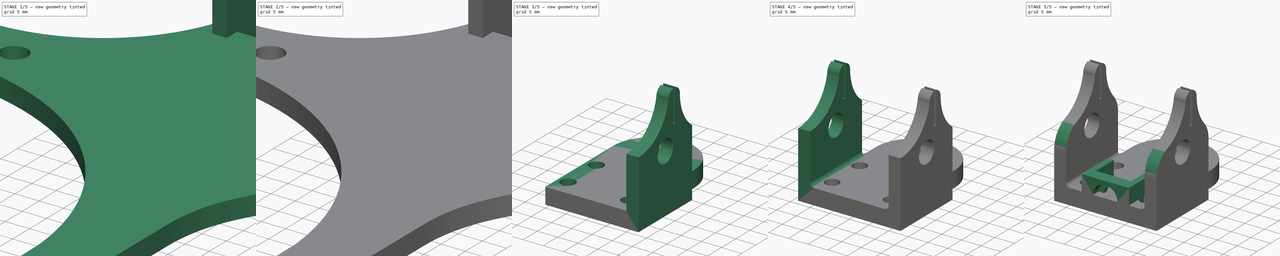
[diagram: build sequence overview — one tinted view per stage of 5, left to right]
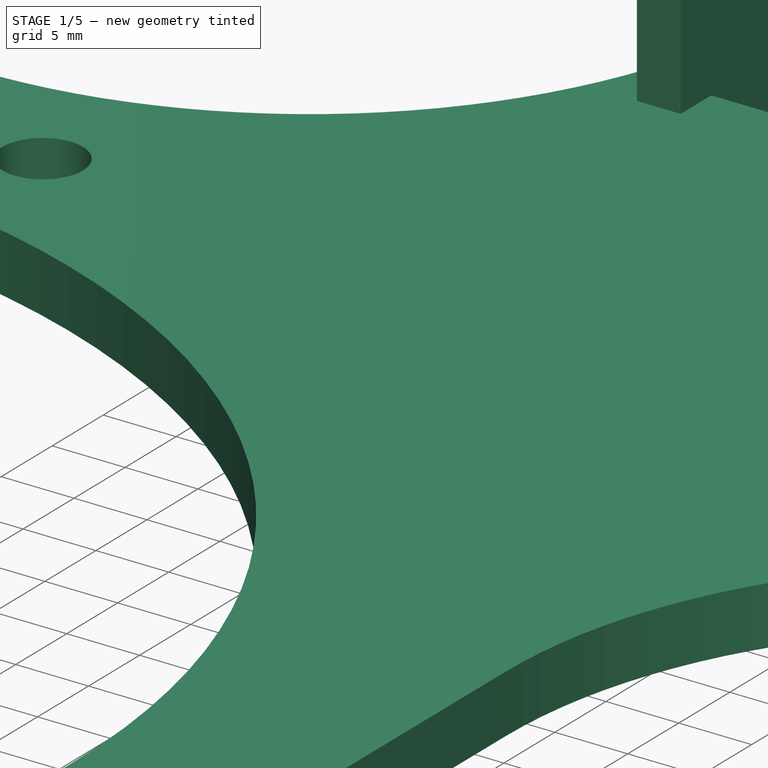
[diagram: stage 1 of 5 — iso view after this stage's code; geometry added in this stage tinted green]
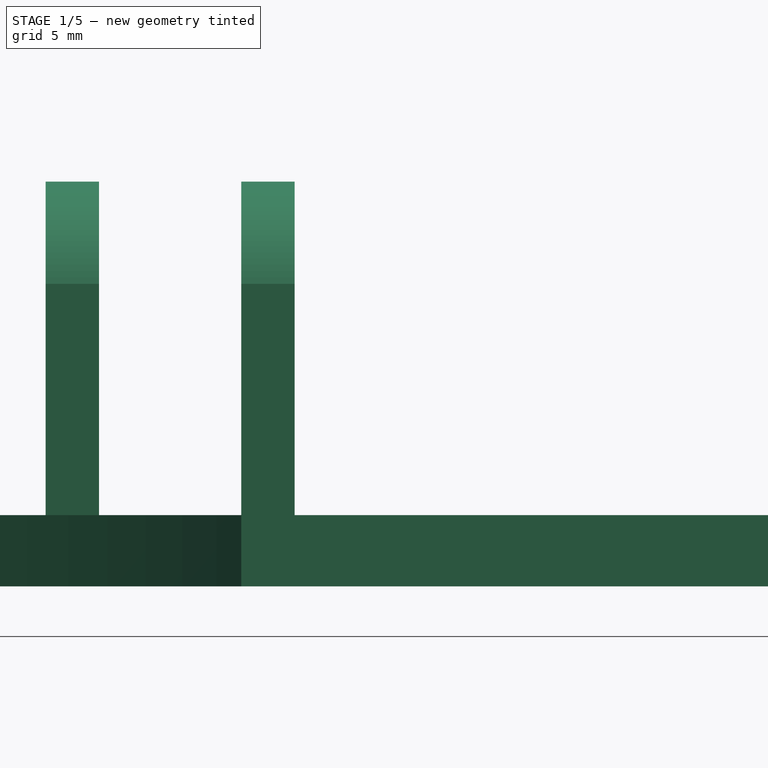
[diagram: stage 1 of 5 — front view after this stage's code; geometry added in this stage tinted green]
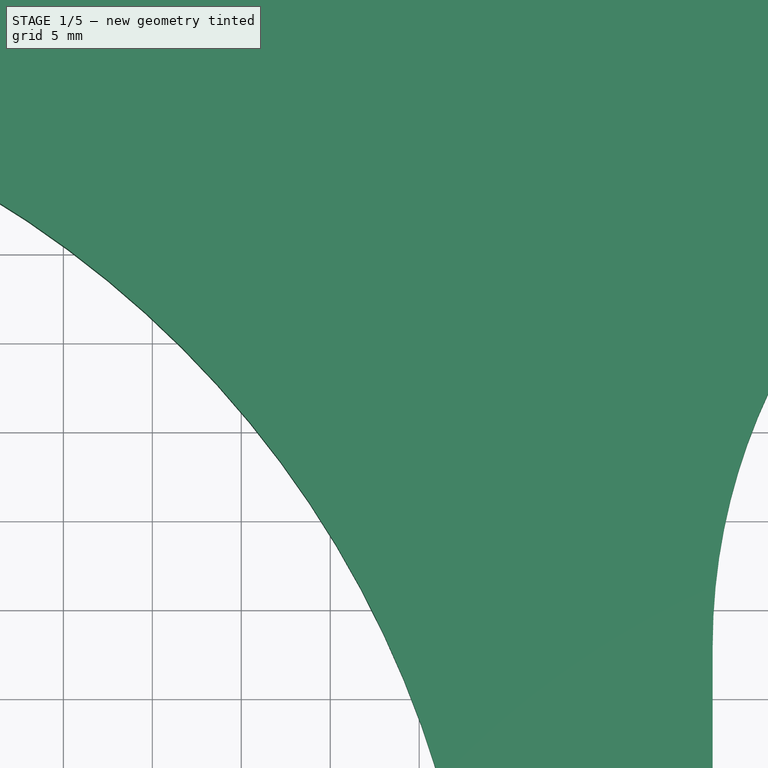
[diagram: stage 1 of 5 — top view after this stage's code; geometry added in this stage tinted green]
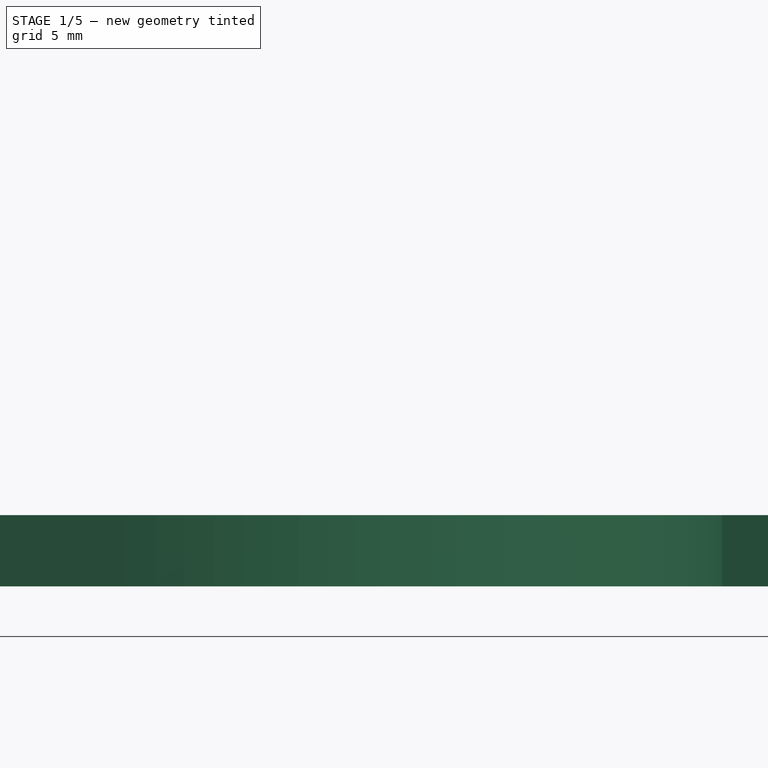
[diagram: stage 1 of 5 — right view after this stage's code; geometry added in this stage tinted green]
FCSTD DOCUMENT  (FreeCAD 1.0RUnknown)
Label: line-measure-tool
License: All rights reserved
LicenseURL: https://en.wikipedia.org/wiki/All_rights_reserved
objects: Sketcher::SketchObject×9, PartDesign::Pad×9, App::VarSet×4, PartDesign::Fillet×4, PartDesign::Hole×3, PartDesign::Body×3, Part::Part2DObjectPython×2, PartDesign::SubShapeBinder×1
note: 72 computed .brp shape members not serialized (recipe doc carries the construction recipe); baked Part::Feature solids carry a one-line shape summary decoded from their .brp

FEATURE [Sketcher::SketchObject] Sketch
  ArcFitTolerance = 1e-06
  AttachmentSupport = -> [XY_Plane]
  FullyConstrained = false
  MakeInternals = false
  MapMode = 5
  expr: Constraints[28] = <<rail>>.Width + 3 mm
  expr: Constraints[30] = <<rail>>.Width + <<rail>>.ClampThickness * 2 + 1 mm
  expr: Constraints[40] = <<wheel>>.thk + 1 mm
  expr: Constraints[41] = <<wheel>>.GrooveHeight + 2 mm
  expr: Constraints[58] = <<block>>.Width / 2 + 10 mm
  sketch-geometry (26):
    g0: LineSegment StartX=20 StartY=0 StartZ=0 EndX=20 EndY=15 EndZ=0
    g1: ArcOfCircle CenterX=20 CenterY=28.5 CenterZ=0 NormalX=0 NormalY=0 NormalZ=1 AngleXU=0 Radius=13.5 StartAngle=3.14159 EndAngle=4.71239
    g2: LineSegment StartX=6.5 StartY=28.5 StartZ=0 EndX=6.5 EndY=63 EndZ=0
    g3: ArcOfCircle CenterX=40 CenterY=63 CenterZ=0 NormalX=0 NormalY=0 NormalZ=1 AngleXU=0 Radius=33.5 StartAngle=1.5708 EndAngle=3.14159
    g4: ArcOfCircle CenterX=40 CenterY=145 CenterZ=0 NormalX=0 NormalY=0 NormalZ=1 AngleXU=0 Radius=33.5 StartAngle=3.14159 EndAngle=4.71239
    g5: LineSegment StartX=6.5 StartY=145 StartZ=0 EndX=6.5 EndY=155 EndZ=0
    g6: LineSegment StartX=6.5 StartY=155 StartZ=0 EndX=-6.5 EndY=155 EndZ=0
    g7: LineSegment StartX=-20 StartY=144.454 StartZ=0 EndX=-20 EndY=132.454 EndZ=0
    g8: LineSegment StartX=-20 StartY=132.454 StartZ=0 EndX=-28 EndY=132.454 EndZ=0
    g9: LineSegment StartX=-28 StartY=132.454 StartZ=0 EndX=-28 EndY=144.454 EndZ=0
    g10: LineSegment StartX=-28 StartY=144.454 StartZ=0 EndX=-31 EndY=144.454 EndZ=0
    g11: LineSegment StartX=-63.9537 StartY=111.5 StartZ=0 EndX=-63.9537 EndY=96.5 EndZ=0
    g12: ArcOfCircle CenterX=-63.9537 CenterY=39.0463 CenterZ=0 NormalX=0 NormalY=0 NormalZ=1 AngleXU=0 Radius=57.4537 StartAngle=0 EndAngle=1.5708
    g13: ArcOfCircle CenterX=-20 CenterY=28.5 CenterZ=0 NormalX=0 NormalY=0 NormalZ=1 AngleXU=0 Radius=13.5 StartAngle=4.71239 EndAngle=6.28319
    g14: LineSegment StartX=-20 StartY=15 StartZ=0 EndX=-20 EndY=0 EndZ=0
    g15: LineSegment StartX=40 StartY=111.5 StartZ=0 EndX=40 EndY=96.5 EndZ=0
    g16: LineSegment StartX=-20 StartY=0 StartZ=0 EndX=20 EndY=0 EndZ=0
    g17: LineSegment StartX=-6.5 StartY=28.5 StartZ=0 EndX=-6.5 EndY=39.0463 EndZ=0
    g18: LineSegment [constr] StartX=-6.5 StartY=28.5 StartZ=0 EndX=6.5 EndY=28.5 EndZ=0
    g19: LineSegment StartX=-6.5 StartY=155 StartZ=0 EndX=-6.5 EndY=145 EndZ=0
    g20: LineSegment StartX=-20 StartY=144.454 StartZ=0 EndX=-6.5 EndY=145 EndZ=0
    g21: ArcOfCircle CenterX=-63.9537 CenterY=144.454 CenterZ=0 NormalX=0 NormalY=0 NormalZ=1 AngleXU=0 Radius=32.9537 StartAngle=4.71239 EndAngle=6.28319
    g22: Circle CenterX=-53.9537 CenterY=104 CenterZ=0 NormalX=0 NormalY=0 NormalZ=1 AngleXU=0 Radius=2.75
    g23: Circle CenterX=30 CenterY=104 CenterZ=0 NormalX=0 NormalY=0 NormalZ=1 AngleXU=0 Radius=2.75
    g24: Circle CenterX=14 CenterY=7.5 CenterZ=0 NormalX=0 NormalY=0 NormalZ=1 AngleXU=0 Radius=2.75
    g25: GeomPoint X=20 Y=7.5 Z=0
  constraints (72):
    c: PointOnObject(g0,g-1)
    c: Vertical(g0)
    c: Perpendicular(g0,g1) = 4.71239
    c: Vertical(g2)
    c: Vertical(g5)
    c: Coincident(g5,g6)
    c: Coincident(g7,g8)
    c: Horizontal(g8)
    c: Coincident(g8,g9)
    c: Coincident(g9,g10)
    c: Horizontal(g10)
    c: Coincident(g13,g14)
    c: Vertical(g14)
    c: Coincident(g15,g3)
    c: Symmetric(g13,g1,g-2)
    c: Coincident(g16,g14)
    c: Coincident(g16,g0)
    c: Vertical(g15)
    c: Vertical(g11)
    c: Vertical(g17)
    c: Vertical(g7)
    c: Coincident(g12,g11)
    c: Coincident(g4,g15)
    c: Tangent(g1,g2) = 1.5708
    c: Distance(g16,g16) = 40
    c: Symmetric(g14,g0,g-2)
    c: Equal(g14,g0)
    c: DistanceY(g14,g14) = 15
    c: Coincident(g17,g13) = 12
    c: Equal(g1,g13)
    c: Distance(g2,g17) = 13
    c: DistanceY(g15,g15) = 15
    c: Coincident(g18,g13)
    c: Coincident(g18,g1)
    c: Equal(g18,g6)
    c: Symmetric(g6,g5,g-2)
    c: Horizontal(g9,g7)
    c: Coincident(g19,g6)
    c: Vertical(g19)
    c: Coincident(g20,g7)
    c: Coincident(g20,g19) = 8
    c: Vertical(g9) = 4.1
    c: DistanceX(g8,g8) = 8
    c: DistanceY(g7,g7) = 12
    c: DistanceY(g14,g6) = 155
    c: Tangent(g2,g3) = 1.5708
    c: Tangent(g4,g5) = 1.5708
    c: Tangent(g17,g12) = -1.5708
    c: Perpendicular(g4,g15)
    c: Perpendicular(g3,g15)
    c: Distance(g-2,g15) = 40
    c: DistanceY(g5,g5) = 10
    c: Equal(g5,g19)
    c: Equal(g15,g11)
    c: DistanceX(g10,g10) = 3
    c: Coincident(g21,g10)
    c: Coincident(g21,g11)
    c: Perpendicular(g21,g11)
    c: Distance(g7,g-2) = 20
    c: Horizontal(g11,g4)
    c: Perpendicular(g12,g11)
    c: Equal(g22,g23)
    c: Equal(g23,g24)
    c: Diameter(g22) = 5.5
    c: Horizontal(g23,g22)
    c: Distance(g22,g11) = 10
    c: Distance(g23,g15) = 10
    c: DistanceY(g23,g4) = 7.5
    c: Perpendicular(g21,g10)
    c: Symmetric(g0,g0,g25)
    c: Horizontal(g25,g24)
    c: Distance(g24,g0) = 6
FEATURE [App::VarSet] VarSet001  label="wheel"
  D = 24
  GrooveHeight = 2.1
  d = 5
  thk = 7
FEATURE [App::VarSet] VarSet  label="block"
  HoleD = 3
  HoleLengthDist = 10
  HoleWidthDist = 15
  L = 28.9
  L1 = 18.9
  Width = 20
FEATURE [App::VarSet] VarSet002  label="rail"
  ClampThickness = 1.5
  Heigth = 6.5
  HoleDiameter = 3.5
  HoleDistance = 20
  HoleEdgeDistance = 10
  L = 100
  Width = 9
FEATURE [PartDesign::Pad] Pad  label="base"
  Direction = (0,0,1)
  Length = 4
  Length2 = 10
  Profile = -> Sketch
  ReferenceAxis = -> Sketch [N_Axis]
  Refine = true
  Suppressed = false
  Type = 0
FEATURE [Sketcher::SketchObject] Sketch001  label="WheelHolderSketch"
  ArcFitTolerance = 1e-06
  AttachmentSupport = -> [YZ_Plane,Pad]
  ExternalGeometry = -> [Pad]
  FullyConstrained = true
  MakeInternals = false
  MapMode = 53
  Placement = pos=(-28,3.1e-15,-3.1e-15) rot=(0.57735,0.57735,0.57735;2.0944rad)
  expr: Constraints[11] = <<wheel>>.d + 0.5 mm
  sketch-geometry (7):
    g0: LineSegment StartX=144.454 StartY=4 StartZ=0 EndX=144.454 EndY=17 EndZ=0
    g1: ArcOfCircle CenterX=136.954 CenterY=14.9837 CenterZ=0 NormalX=0 NormalY=0 NormalZ=1 AngleXU=0 Radius=7.7663 StartAngle=0.262631 EndAngle=2.87896
    g2: LineSegment StartX=129.454 StartY=17 StartZ=0 EndX=129.454 EndY=4 EndZ=0
    g3: LineSegment StartX=129.454 StartY=4 StartZ=0 EndX=144.454 EndY=4 EndZ=0
    g4: Circle CenterX=136.954 CenterY=17 CenterZ=0 NormalX=0 NormalY=0 NormalZ=1 AngleXU=0 Radius=2.75
    g5: GeomPoint X=136.954 Y=22.75 Z=0
    g6: GeomPoint X=136.954 Y=19.75 Z=0
  constraints (19):
    c: Coincident(g-3,g0)
    c: Vertical(g0)
    c: Coincident(g2,g3)
    c: Coincident(g3,g0)
    c: Horizontal(g3)
    c: Vertical(g2)
    c: DistanceX(g3,g3) = 15
    c: DistanceY(g0,g0) = 13
    c: Coincident(g1,g2)
    c: Coincident(g1,g0)
    c: Horizontal(g1,g0)
    c: Diameter(g4) = 5.5
    c: Vertical(g4,g1)
    c: PointOnObject(g5,g1)
    c: PointOnObject(g6,g4)
    c: Vertical(g6,g5)
    c: Vertical(g5,g4)
    c: Distance(g5,g6) = 3
    c: Distance(g4,g3) = 13
FEATURE [Part::Part2DObjectPython] Clone2D  label="WheelHolderSketch (2D)"  # Draft 2D object (typed FeaturePython)
  AttachmentSupport = -> [YZ_Plane,Pad]
  Fuse = false
  MapMode = 53
  Objects = -> [Sketch001]
  Placement = pos=(-20,2.2e-15,-2.2e-15) rot=(0.57735,0.57735,0.57735;2.0944rad)
  Scale = (1,1,1)
FEATURE [PartDesign::Pad] Pad001  label="WheelHolder"
  BaseFeature = -> Pad
  Direction = (1,0,0)
  Length = 3
  Length2 = 10
  Profile = -> Sketch001
  ReferenceAxis = -> Sketch001 [N_Axis]
  Refine = true
  Reversed = true
  Suppressed = false
  Type = 0
FEATURE [PartDesign::Pad] Pad002
  BaseFeature = -> Pad001
  Direction = (1,0,0)
  Length = 3
  Length2 = 10
  Profile = -> Clone2D
  ReferenceAxis = -> Clone2D [N_Axis]
  Refine = true
  Suppressed = false
  Type = 0
  expr: Length = <<WheelHolder>>.Length
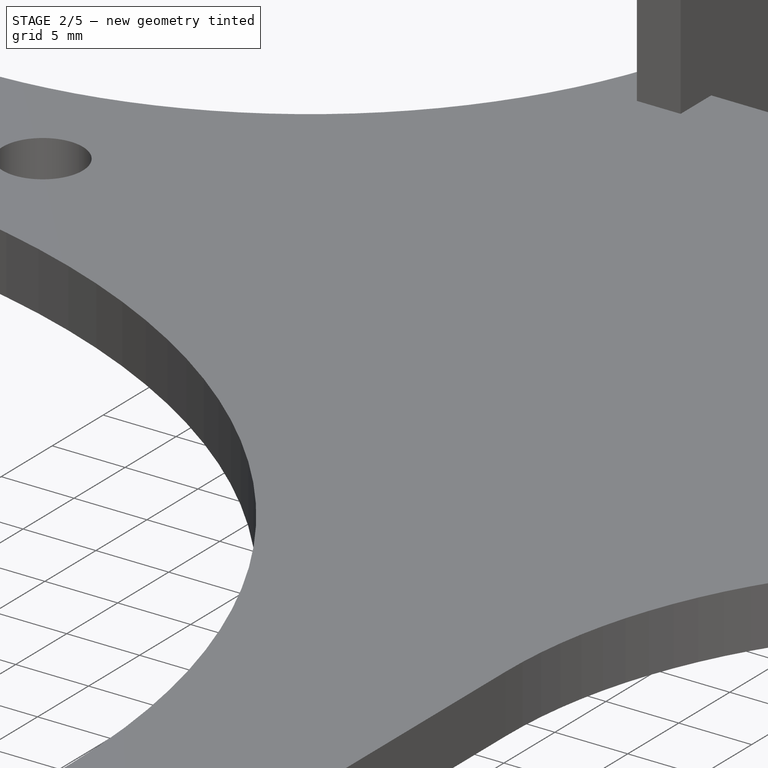
[diagram: stage 2 of 5 — iso view after this stage's code; geometry added in this stage tinted green]
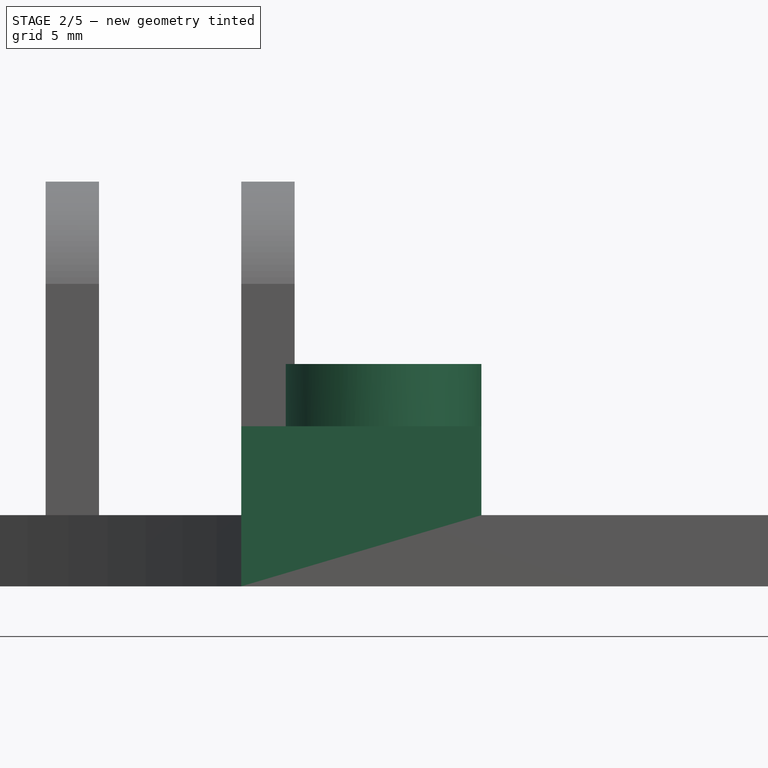
[diagram: stage 2 of 5 — front view after this stage's code; geometry added in this stage tinted green]
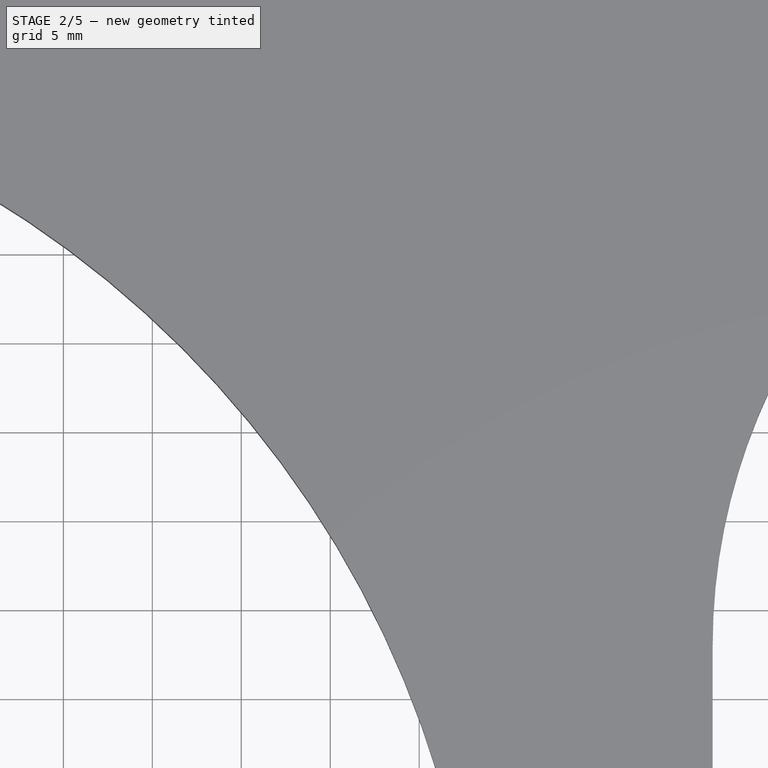
[diagram: stage 2 of 5 — top view after this stage's code; geometry added in this stage tinted green]
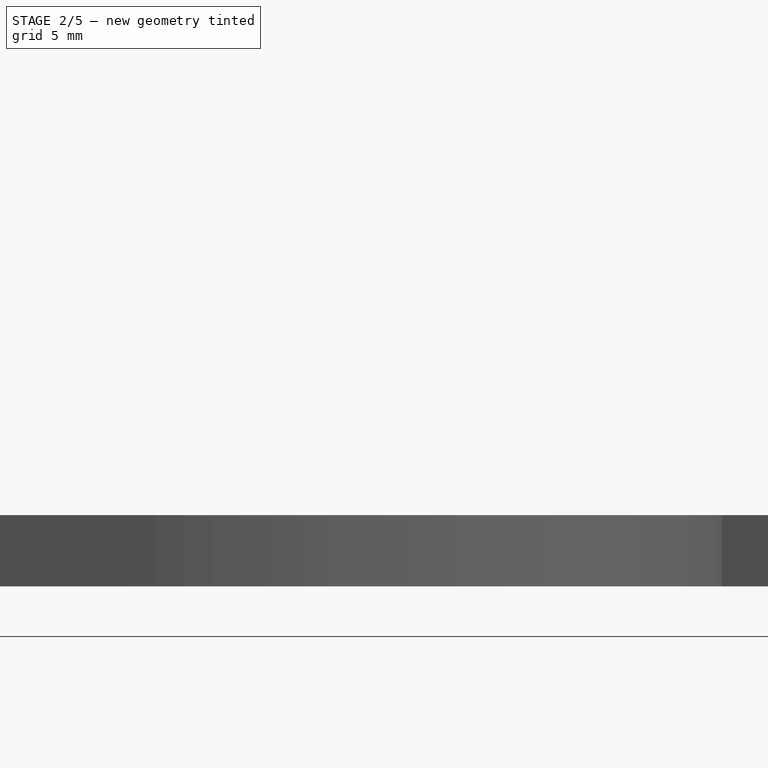
[diagram: stage 2 of 5 — right view after this stage's code; geometry added in this stage tinted green]
FEATURE [Sketcher::SketchObject] Sketch002
  ArcFitTolerance = 1e-06
  AttachmentSupport = -> [XY_Plane]
  ExternalGeometry = -> [Pad002,Sketch]
  FullyConstrained = true
  MakeInternals = false
  MapMode = 5
  expr: Constraints[0] = <<wheel>>.D / 2
  sketch-geometry (1):
    g0: Circle CenterX=-12 CenterY=5.5 CenterZ=0 NormalX=0 NormalY=0 NormalZ=1 AngleXU=0 Radius=5.5
  constraints (3):
    c: Distance(g0,g-2) = 12
    c: Tangent(g0,g-4)
    c: Tangent(g-5,g0)
FEATURE [App::VarSet] VarSet003  label="assembly"
  Height = 10
FEATURE [Sketcher::SketchObject] Sketch003
  ArcFitTolerance = 1e-06
  AttachmentSupport = -> [Pad002]
  ExternalGeometry = -> [Pad002,Sketch]
  FullyConstrained = false
  MakeInternals = false
  MapMode = 5
  Placement = pos=(0,0,4) rot=(0,0,1;0rad)
  sketch-geometry (5):
    g0: LineSegment StartX=-20 StartY=0 StartZ=0 EndX=-20 EndY=15 EndZ=0
    g1: ArcOfCircle CenterX=-20 CenterY=28.5 CenterZ=0 NormalX=0 NormalY=0 NormalZ=1 AngleXU=0 Radius=13.5 StartAngle=4.71239 EndAngle=5.40375
    g2: LineSegment StartX=-6.5 StartY=18.0999 StartZ=0 EndX=-6.5 EndY=0 EndZ=0
    g3: LineSegment StartX=-6.5 StartY=0 StartZ=0 EndX=-20 EndY=0 EndZ=0
    g4: LineSegment StartX=-11.3926 StartY=18.0999 StartZ=0 EndX=-6.5 EndY=18.0999 EndZ=0
  constraints (12):
    c: Coincident(g-3,g0)
    c: Perpendicular(g0,g1) = 4.71239
    c: PointOnObject(g2,g-1)
    c: Vertical(g2)
    c: Coincident(g2,g3)
    c: Coincident(g3,g0)
    c: Horizontal(g4)
    c: Coincident(g1,g4)
    c: Coincident(g2,g4)
    c: Coincident(g0,g-5)
    c: PointOnObject(g1,g-5)
    c: Vertical(g-6,g2)
FEATURE [PartDesign::Pad] Pad004  label="WheelRectSupport\"
  BaseFeature = -> Pad002
  Direction = (0,0,1)
  Length = 5
  Length2 = 10
  Profile = -> Sketch003
  ReferenceAxis = -> Sketch003 [N_Axis]
  Refine = true
  Suppressed = false
  Type = 0
FEATURE [PartDesign::Pad] Pad003  label="WheelRoundSupport"
  BaseFeature = -> Pad004
  Direction = (0,0,1)
  Length = 12.5
  Length2 = 10
  Profile = -> Sketch002
  ReferenceAxis = -> Sketch002 [N_Axis]
  Refine = true
  Suppressed = false
  Type = 0
  expr: Length = <<assembly>>.Height - <<wheel>>.thk / 2 + <<base>>.Length + 2 mm
FEATURE [PartDesign::Hole] Hole  label="WheelHole"
  BaseFeature = -> Pad003
  CustomThreadClearance = 0
  Depth = 379.489
  DepthType = 1
  Diameter = 5.5
  DrillForDepth = false
  DrillPoint = 1
  DrillPointAngle = 118
  HoleCutCountersinkAngle = 90
  HoleCutCustomValues = false
  HoleCutDepth = 5.5
  HoleCutDiameter = 10
  HoleCutType = 1
  ModelThread = false
  Profile = -> Sketch002
  Refine = true
  Reversed = true
  Suppressed = false
  Tapered = false
  TaperedAngle = 90
  ThreadClass = 0
  ThreadDepth = 379.489
  ThreadDepthType = 0
  ThreadDirection = 0
  ThreadFit = 0
  ThreadSize = 13
  ThreadType = 1
  Threaded = false
  UseCustomThreadClearance = false
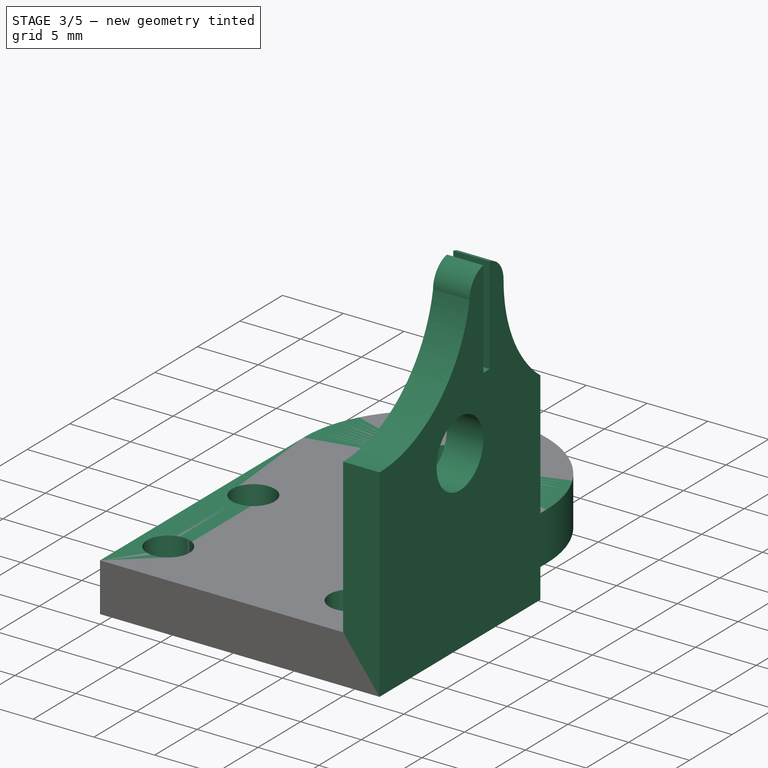
[diagram: stage 3 of 5 — iso view after this stage's code; geometry added in this stage tinted green]
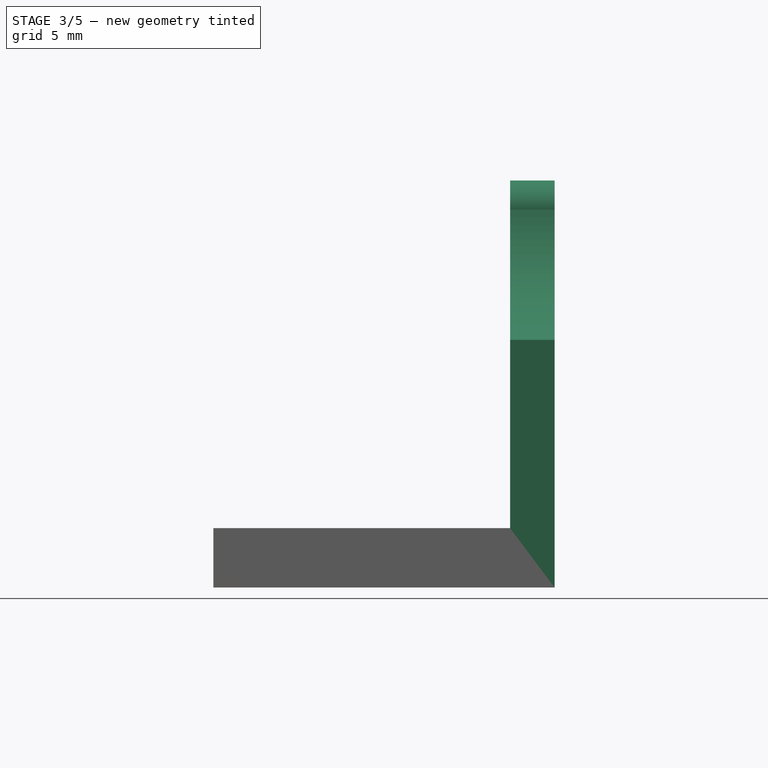
[diagram: stage 3 of 5 — front view after this stage's code; geometry added in this stage tinted green]
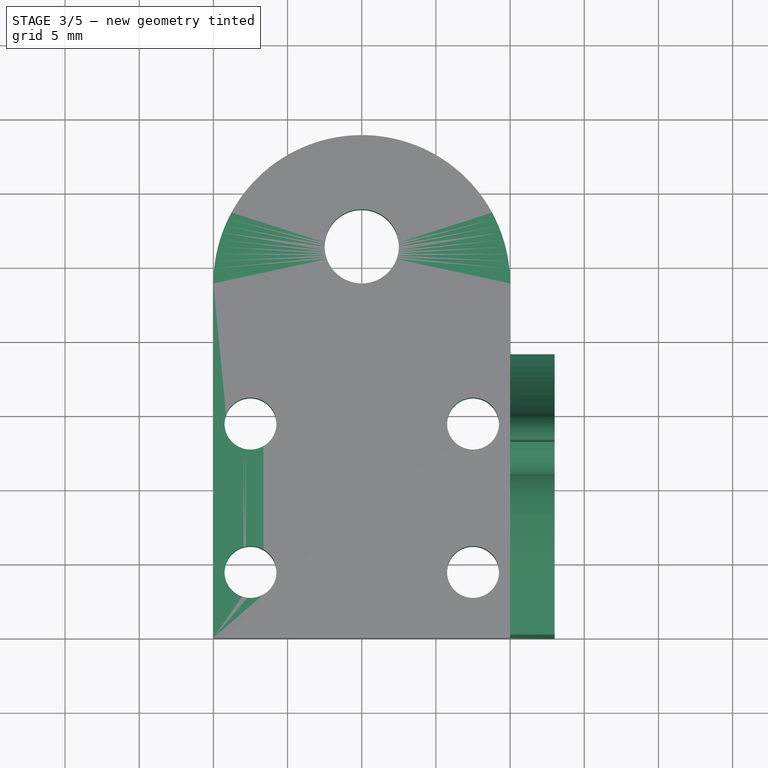
[diagram: stage 3 of 5 — top view after this stage's code; geometry added in this stage tinted green]
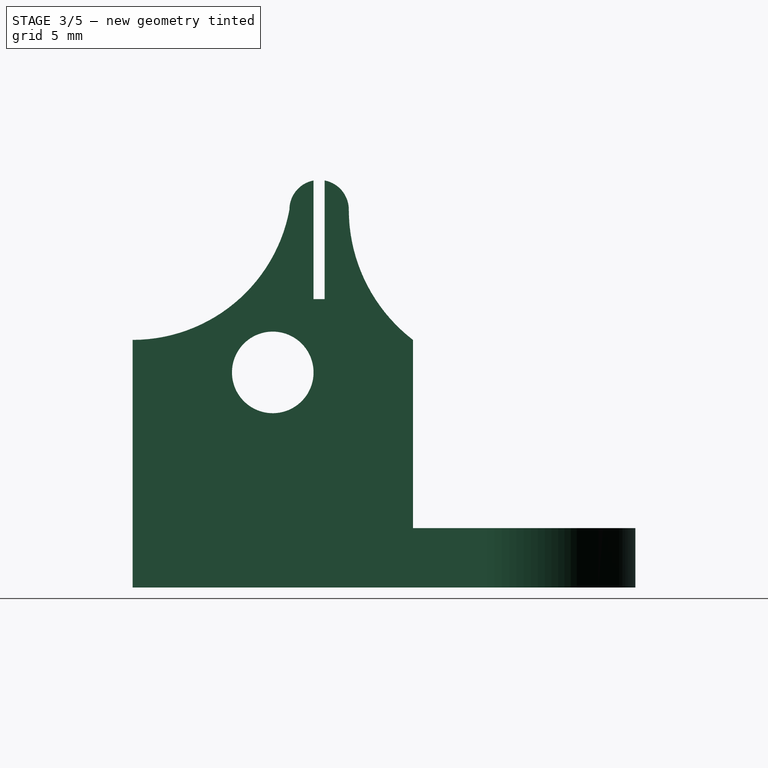
[diagram: stage 3 of 5 — right view after this stage's code; geometry added in this stage tinted green]
FEATURE [Sketcher::SketchObject] Sketch004
  ArcFitTolerance = 1e-06
  AttachmentSupport = -> [Hole]
  FullyConstrained = true
  MakeInternals = false
  MapMode = 5
  Placement = pos=(0,0,0) rot=(1,0,0;3.14159rad)
  expr: Constraints[11] = <<rail>>.HoleDistance
  expr: Constraints[2] = <<rail>>.HoleEdgeDistance
  expr: Constraints[3] = <<rail>>.HoleDistance * 6
  expr: Constraints[5] = <<rail>>.HoleDiameter + 0.5 mm
  expr: Constraints[8] = <<rail>>.HoleDistance
  sketch-geometry (4):
    g0: Circle CenterX=0 CenterY=-10 CenterZ=0 NormalX=0 NormalY=0 NormalZ=1 AngleXU=0 Radius=2
    g1: Circle CenterX=0 CenterY=-130 CenterZ=0 NormalX=0 NormalY=0 NormalZ=1 AngleXU=0 Radius=2
    g2: Circle CenterX=0 CenterY=-30 CenterZ=0 NormalX=0 NormalY=0 NormalZ=1 AngleXU=0 Radius=2
    g3: Circle CenterX=0 CenterY=-150 CenterZ=0 NormalX=0 NormalY=0 NormalZ=1 AngleXU=0 Radius=2
  constraints (12):
    c: PointOnObject(g0,g-2)
    c: PointOnObject(g1,g-2)
    c: Distance(g0,g-1) = 10
    c: DistanceY(g1,g0) = 120
    c: Equal(g0,g1)
    c: Diameter(g0) = 4
    c: PointOnObject(g2,g-2)
    c: Equal(g0,g2)
    c: DistanceY(g2,g0) = 20
    c: PointOnObject(g3,g-2)
    c: Equal(g3,g0)
    c: DistanceY(g3,g1) = 20
FEATURE [PartDesign::Hole] Hole001  label="RailHole"
  BaseFeature = -> Hole
  CustomThreadClearance = 0
  Depth = 25
  DepthType = 0
  Diameter = 3.4
  DrillForDepth = false
  DrillPoint = 1
  DrillPointAngle = 118
  HoleCutCountersinkAngle = 90
  HoleCutCustomValues = false
  HoleCutDepth = 3
  HoleCutDiameter = 6.1
  HoleCutType = 1
  ModelThread = false
  Profile = -> Sketch004
  Refine = true
  Suppressed = false
  Tapered = false
  TaperedAngle = 90
  ThreadClass = 0
  ThreadDepth = 25
  ThreadDepthType = 0
  ThreadDirection = 0
  ThreadFit = 0
  ThreadSize = 9
  ThreadType = 1
  Threaded = false
  UseCustomThreadClearance = false
FEATURE [PartDesign::Body] Body002  label="Clamp"
  AllowCompound = false
  Group = -> [Sketch005,Pad005,Sketch006,Hole002]
  Origin = -> Origin002
  Tip = -> Hole002
FEATURE [Sketcher::SketchObject] Sketch007
  ArcFitTolerance = 1e-06
  AttachmentSupport = -> [XY_Plane001]
  FullyConstrained = true
  MakeInternals = false
  MapMode = 5
  expr: Constraints[10] = <<block>>.L1 + (<<block>>.L - <<block>>.L1) / 2
  expr: Constraints[23] = <<block>>.HoleWidthDist
  expr: Constraints[24] = <<block>>.HoleLengthDist
  expr: Constraints[25] = <<block>>.HoleD + 0.5 mm
  expr: Constraints[26] = (<<block>>.L1 - <<block>>.HoleLengthDist) / 2
  expr: Constraints[9] = <<block>>.Width
  sketch-geometry (10):
    g0: LineSegment StartX=-10 StartY=0 StartZ=0 EndX=10 EndY=0 EndZ=0
    g1: LineSegment StartX=10 StartY=0 StartZ=0 EndX=10 EndY=23.9 EndZ=0
    g2: ArcOfCircle CenterX=0 CenterY=23.9 CenterZ=0 NormalX=0 NormalY=0 NormalZ=1 AngleXU=0 Radius=10 StartAngle=1e-16 EndAngle=3.14159
    g3: LineSegment StartX=-10 StartY=23.9 StartZ=0 EndX=-10 EndY=0 EndZ=0
    g4: Circle CenterX=0 CenterY=26.4 CenterZ=0 NormalX=0 NormalY=0 NormalZ=1 AngleXU=0 Radius=2.5
    g5: GeomPoint X=0 Y=33.9 Z=0
    g6: Circle CenterX=-7.5 CenterY=4.45 CenterZ=0 NormalX=0 NormalY=0 NormalZ=1 AngleXU=0 Radius=1.75
    g7: Circle CenterX=7.5 CenterY=4.45 CenterZ=0 NormalX=0 NormalY=0 NormalZ=1 AngleXU=0 Radius=1.75
    g8: Circle CenterX=7.5 CenterY=14.45 CenterZ=0 NormalX=0 NormalY=0 NormalZ=1 AngleXU=0 Radius=1.75
    g9: Circle CenterX=-7.5 CenterY=14.45 CenterZ=0 NormalX=0 NormalY=0 NormalZ=1 AngleXU=0 Radius=1.75
  constraints (27):
    c: PointOnObject(g0,g-1)
    c: PointOnObject(g0,g-1)
    c: Coincident(g0,g1)
    c: Vertical(g1)
    c: Tangent(g1,g2) = -1.5708
    c: Coincident(g2,g3)
    c: Coincident(g3,g0)
    c: Vertical(g3)
    c: Symmetric(g2,g1,g-2)
    c: Distance(g1,g3) = 20
    c: DistanceY(g3,g3) = 23.9
    c: PointOnObject(g4,g-2)
    c: Diameter(g4) = 5
    c: PointOnObject(g5,g2)
    c: PointOnObject(g5,g-2)
    c: PointOnObject(g2,g4)
    c: Vertical(g9,g6)
    c: Vertical(g7,g8)
    c: Horizontal(g7,g6)
    c: Equal(g9,g8)
    c: Equal(g8,g6)
    c: Equal(g6,g7)
    c: Symmetric(g8,g9,g-2)
    c: Distance(g9,g8) = 15
    c: DistanceY(g7,g8) = 10
    c: Diameter(g9) = 3.5
    c: Distance(g6,g0) = 4.45
FEATURE [PartDesign::Pad] Pad006  label="BaseCarrige"
  Direction = (0,0,1)
  Length = 4
  Length2 = 10
  Profile = -> Sketch007
  ReferenceAxis = -> Sketch007 [N_Axis]
  Refine = true
  Suppressed = false
  Type = 0
FEATURE [PartDesign::Fillet] Fillet003
  Base = -> Hole001 [Edge24,Edge32,Edge34]
  BaseFeature = -> Hole001
  Radius = 4
  Refine = true
  SupportTransform = false
  Suppressed = false
  UseAllEdges = false
FEATURE [PartDesign::Body] Body  label="Base"
  AllowCompound = false
  Group = -> [Sketch,Pad,Sketch001,Clone2D,Pad001,Pad002,Sketch002,Sketch003,Pad004,Pad003,Hole,Sketch004,Hole001,Fillet003]
  Origin = -> Origin
  Tip = -> Fillet003
FEATURE [PartDesign::SubShapeBinder] Binder
  BindCopyOnChange = 0
  BindMode = 0
  ClaimChildren = false
  Context = -> Body001 [Binder.]
  Fuse = false
  MakeFace = true
  OffsetFill = false
  OffsetIntersection = false
  OffsetJoinType = 0
  OffsetOpenResult = false
  PartialLoad = false
  Refine = true
  Relative = true
  Support = -> [Body[Sketch001.]]
  _Version = 2
FEATURE [Sketcher::SketchObject] Sketch008  label="LineFixtureSketch"
  ArcFitTolerance = 1e-06
  AttachmentSupport = -> [Pad006]
  ExternalGeometry = -> [Binder]
  FullyConstrained = false
  MakeInternals = false
  MapMode = 5
  Placement = pos=(10,0,0) rot=(0.57735,0.57735,0.57735;2.0944rad)
  expr: Constraints[8] = <<block>>.L1
  sketch-geometry (17):
    g0: LineSegment [constr] StartX=0 StartY=0 StartZ=0 EndX=18.9 EndY=0 EndZ=0
    g1: LineSegment StartX=18.9 StartY=0 StartZ=0 EndX=18.9 EndY=16.6907 EndZ=0
    g2: ArcOfCircle CenterX=25.6533 CenterY=25.4726 CenterZ=0 NormalX=0 NormalY=0 NormalZ=1 AngleXU=0 Radius=11.0783 StartAngle=3.14159 EndAngle=4.05684
    g3: ArcOfCircle CenterX=12.575 CenterY=25.4726 CenterZ=0 NormalX=0 NormalY=0 NormalZ=1 AngleXU=0 Radius=2 StartAngle=0 EndAngle=1.38218
    g4: ArcOfCircle CenterX=0 CenterY=27.4488 CenterZ=0 NormalX=0 NormalY=0 NormalZ=1 AngleXU=0 Radius=10.7581 StartAngle=4.71239 EndAngle=6.09844
    g5: Circle CenterX=9.45 CenterY=14.5 CenterZ=0 NormalX=0 NormalY=0 NormalZ=1 AngleXU=0 Radius=2.75
    g6: LineSegment StartX=12.2 StartY=27.4371 StartZ=0 EndX=12.2 EndY=19.4371 EndZ=0
    g7: LineSegment StartX=12.2 StartY=19.4371 StartZ=0 EndX=12.95 EndY=19.4371 EndZ=0
    g8: LineSegment StartX=12.95 StartY=19.4371 StartZ=0 EndX=12.95 EndY=27.4371 EndZ=0
    g9: LineSegment [constr] StartX=12.575 StartY=25.4726 StartZ=0 EndX=12.575 EndY=20.0853 EndZ=0
    g10: GeomPoint [constr] X=12.2 Y=14.5 Z=0
    g11: GeomPoint [constr] X=9.45 Y=0 Z=0
    g12: LineSegment StartX=-2e-15 StartY=16.6907 StartZ=0 EndX=0 EndY=0 EndZ=0
    g13: ArcOfCircle CenterX=12.575 CenterY=25.4726 CenterZ=0 NormalX=0 NormalY=0 NormalZ=1 AngleXU=0 Radius=2 StartAngle=1.75941 EndAngle=3.14159
    g14: LineSegment StartX=0 StartY=0 StartZ=0 EndX=18.9 EndY=0 EndZ=0
    g15: GeomPoint X=9.45 Y=11.75 Z=0
    g16: GeomPoint X=-3.04633 Y=8.75 Z=0
  constraints (44):
    c: Coincident(g-1,g0)
    c: PointOnObject(g0,g-1)
    c: Coincident(g0,g1)
    c: Vertical(g1)
    c: Tangent(g2,g3) = 1.5708
    c: Horizontal(g4,g1)
    c: Horizontal(g13,g3)
    c: Horizontal(g3,g2)
    c: DistanceX(g0,g0) = 18.9
    c: Radius(g3) = 2
    c: Coincident(g1,g2)
    c: PointOnObject(g4,g-2)
    c: Coincident(g4,g13)
    c: PointOnObject(g6,g13)
    c: Vertical(g6)
    c: Coincident(g6,g7)
    c: Horizontal(g7)
    c: Coincident(g7,g8)
    c: Vertical(g8)
    c: Coincident(g9,g3)
    c: Vertical(g9)
    c: Symmetric(g6,g8,g9)
    c: DistanceY(g6,g6) = 8
    c: Distance(g7,g7) = 0.75  'Credit card thickness'
    c: PointOnObject(g10,g5)
    c: Horizontal(g5,g10)
    c: Vertical(g10,g6)
    c: Diameter(g5) = 5.5
    c: PointOnObject(g4,g-2)
    c: Symmetric(g0,g0,g11)
    c: Vertical(g5,g11)
    c: Coincident(g12,g4)
    c: Coincident(g12,g0)
    c: Equal(g3,g13)
    c: PointOnObject(g3,g8)
    c: PointOnObject(g13,g6)
    c: Coincident(g3,g13)
    c: Coincident(g14,g0)
    c: Coincident(g14,g0)
    c: PointOnObject(g15,g5)
    c: Vertical(g15,g5)
    c: PointOnObject(g16,g-3)
    c: Vertical(g16,g-3)
    c: DistanceY(g16,g15) = 3
FEATURE [PartDesign::Pad] Pad007  label="LineFixture"
  BaseFeature = -> Pad006
  Direction = (1,0,0)
  Length = 3
  Length2 = 10
  Profile = -> Sketch008
  ReferenceAxis = -> Sketch008 [N_Axis]
  Refine = true
  Suppressed = false
  Type = 0
  expr: Length = 3
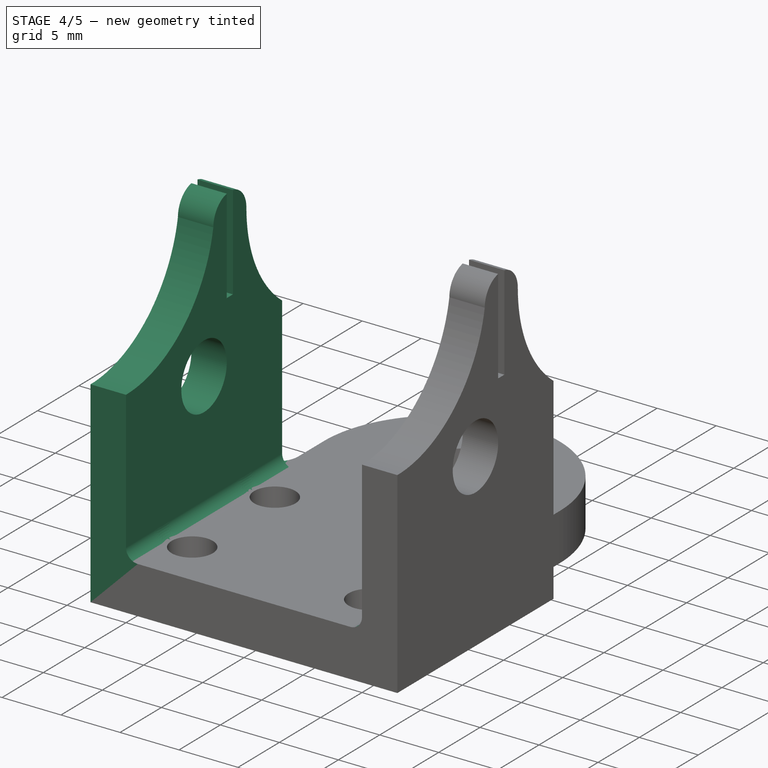
[diagram: stage 4 of 5 — iso view after this stage's code; geometry added in this stage tinted green]
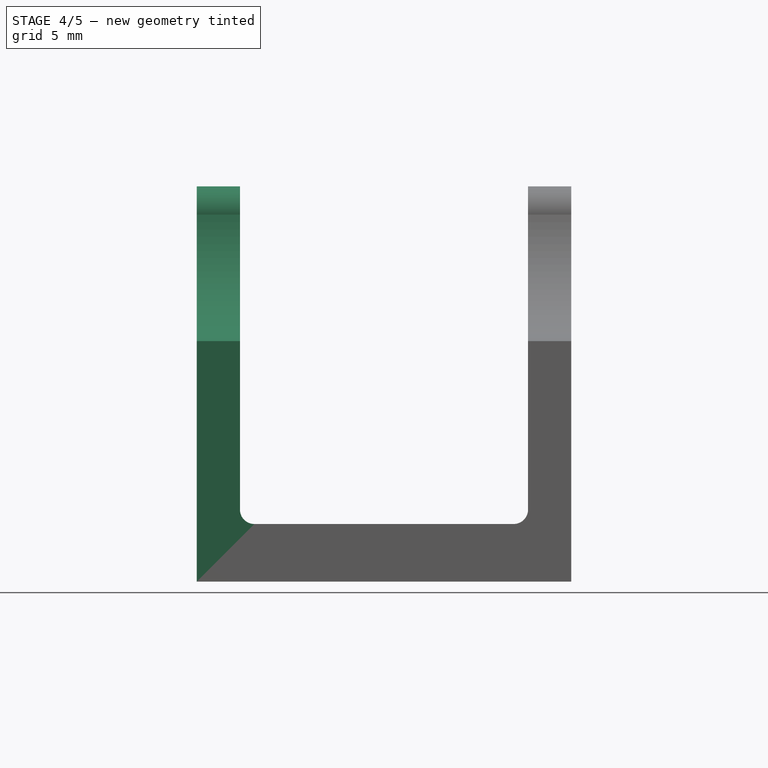
[diagram: stage 4 of 5 — front view after this stage's code; geometry added in this stage tinted green]
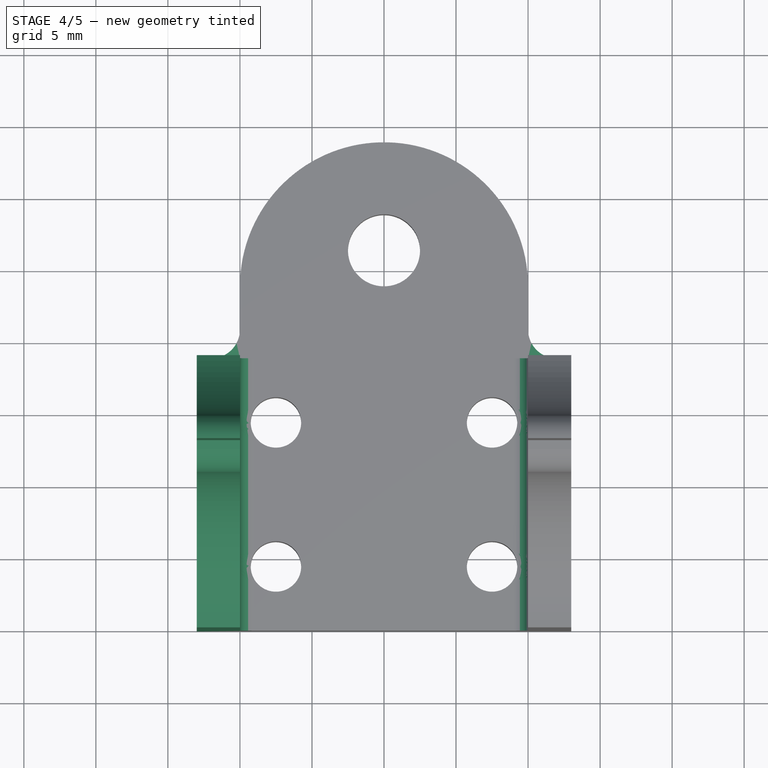
[diagram: stage 4 of 5 — top view after this stage's code; geometry added in this stage tinted green]
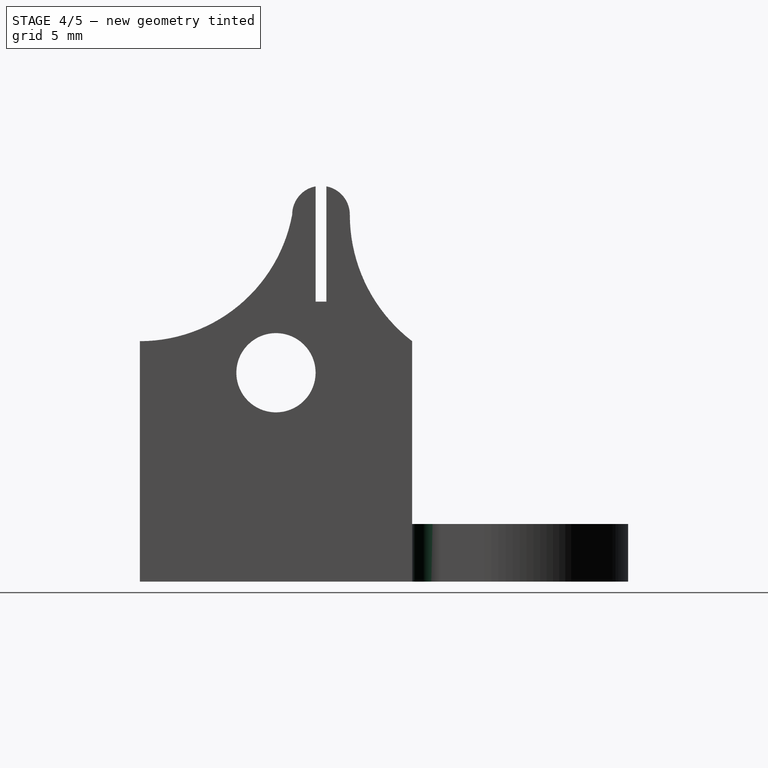
[diagram: stage 4 of 5 — right view after this stage's code; geometry added in this stage tinted green]
FEATURE [Part::Part2DObjectPython] Clone2D001  label="LineFixtureSketch (2D)"  # Draft 2D object (typed FeaturePython)
  AttachmentSupport = -> [Pad007]
  Fuse = false
  MapMode = 5
  Objects = -> [Sketch008]
  Placement = pos=(-10,0,0) rot=(0.57735,0.57735,0.57735;2.0944rad)
  Scale = (1,1,1)
FEATURE [PartDesign::Pad] Pad008
  BaseFeature = -> Pad007
  Direction = (1,0,0)
  Length = 3
  Length2 = 10
  Profile = -> Clone2D001
  ReferenceAxis = -> Clone2D001 [N_Axis]
  Refine = true
  Reversed = true
  Suppressed = false
  Type = 0
  expr: Length = <<LineFixture>>.Length
FEATURE [PartDesign::Fillet] Fillet
  Base = -> Pad008 [Edge28,Edge12]
  BaseFeature = -> Pad008
  Radius = 1
  Refine = true
  SupportTransform = false
  Suppressed = false
  UseAllEdges = false
FEATURE [PartDesign::Fillet] Fillet004
  Base = -> Fillet [Edge20,Edge121]
  BaseFeature = -> Fillet
  Radius = 2
  Refine = true
  SupportTransform = false
  Suppressed = false
  UseAllEdges = false
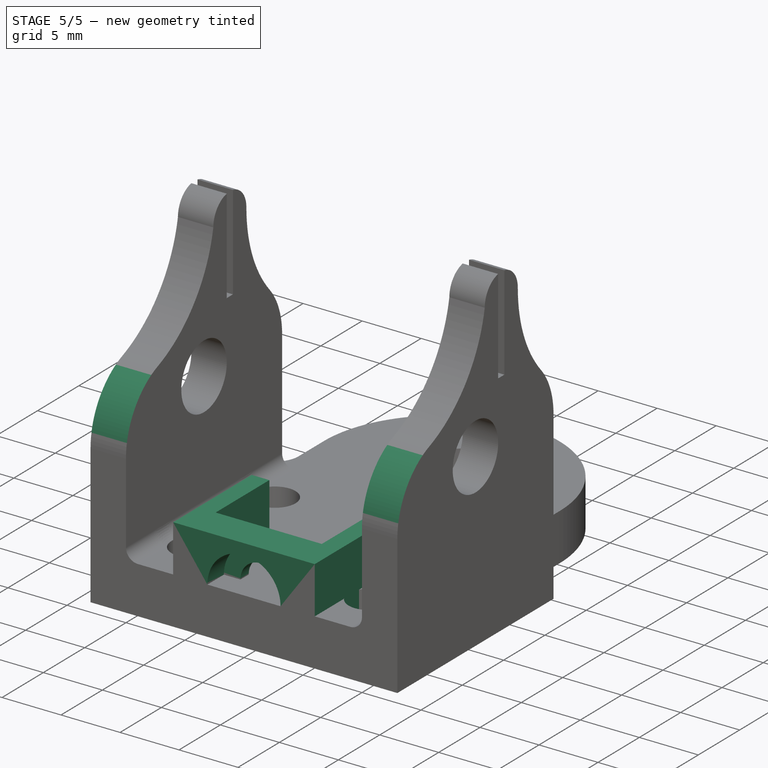
[diagram: stage 5 of 5 — iso view after this stage's code; geometry added in this stage tinted green]
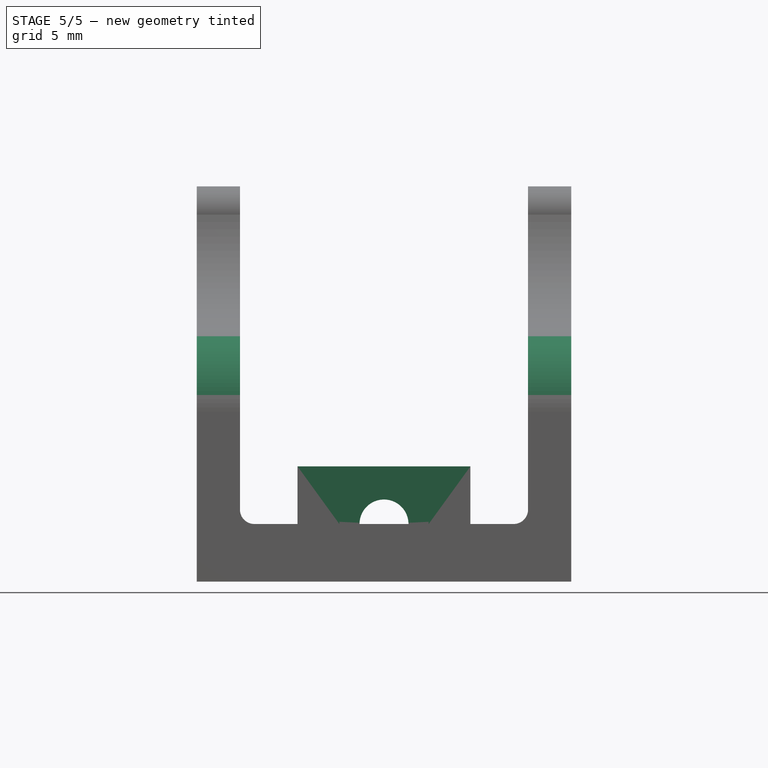
[diagram: stage 5 of 5 — front view after this stage's code; geometry added in this stage tinted green]
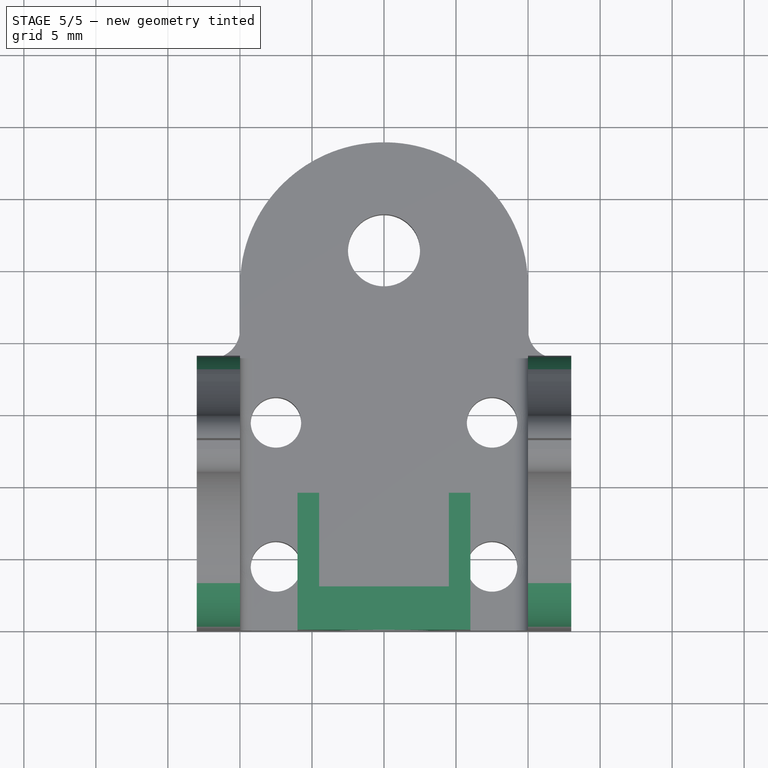
[diagram: stage 5 of 5 — top view after this stage's code; geometry added in this stage tinted green]
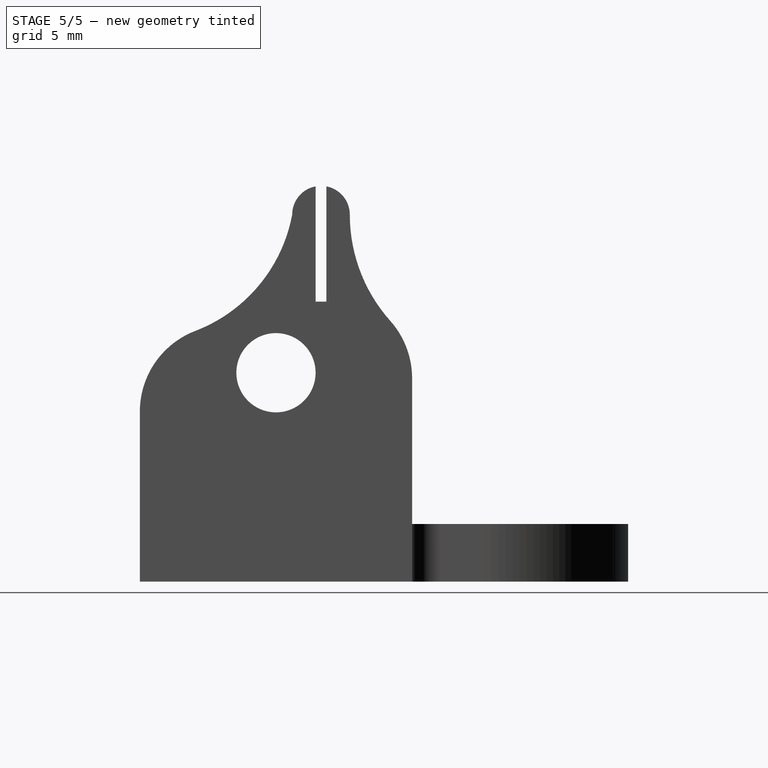
[diagram: stage 5 of 5 — right view after this stage's code; geometry added in this stage tinted green]
FEATURE [Sketcher::SketchObject] Sketch005
  ArcFitTolerance = 1e-06
  AttachmentSupport = -> [XY_Plane002]
  FullyConstrained = true
  MakeInternals = false
  MapMode = 5
  expr: Constraints[19] = <<rail>>.ClampThickness
  expr: Constraints[20] = <<rail>>.Width
  expr: Constraints[21] = <<rail>>.Heigth
  sketch-geometry (8):
    g0: LineSegment StartX=-6 StartY=9.5 StartZ=0 EndX=-6 EndY=0 EndZ=0
    g1: LineSegment StartX=-6 StartY=0 StartZ=0 EndX=6 EndY=0 EndZ=0
    g2: LineSegment StartX=6 StartY=0 StartZ=0 EndX=6 EndY=9.5 EndZ=0
    g3: LineSegment StartX=6 StartY=9.5 StartZ=0 EndX=4.5 EndY=9.5 EndZ=0
    g4: LineSegment StartX=4.5 StartY=9.5 StartZ=0 EndX=4.5 EndY=3 EndZ=0
    g5: LineSegment StartX=4.5 StartY=3 StartZ=0 EndX=-4.5 EndY=3 EndZ=0
    g6: LineSegment StartX=-4.5 StartY=3 StartZ=0 EndX=-4.5 EndY=9.5 EndZ=0
    g7: LineSegment StartX=-4.5 StartY=9.5 StartZ=0 EndX=-6 EndY=9.5 EndZ=0
  constraints (23):
    c: PointOnObject(g0,g-1)
    c: Vertical(g0)
    c: Coincident(g0,g1)
    c: PointOnObject(g1,g-1)
    c: Coincident(g1,g2)
    c: Vertical(g2)
    c: Coincident(g2,g3)
    c: Coincident(g3,g4)
    c: Vertical(g4)
    c: Coincident(g4,g5)
    c: Horizontal(g5)
    c: Coincident(g5,g6)
    c: Vertical(g6)
    c: Coincident(g6,g7)
    c: Coincident(g7,g0)
    c: Horizontal(g7)
    c: Horizontal(g3)
    c: Symmetric(g6,g3,g-2)
    c: Equal(g7,g3)
    c: Distance(g3,g3) = 1.5
    c: Distance(g4,g6) = 9
    c: DistanceY(g6,g6) = 6.5
    c: Distance(g1,g5) = 3
FEATURE [PartDesign::Pad] Pad005  label="ClampBase"
  Direction = (0,0,1)
  Length = 8
  Length2 = 10
  Profile = -> Sketch005
  ReferenceAxis = -> Sketch005 [N_Axis]
  Refine = true
  Suppressed = false
  Type = 0
FEATURE [Sketcher::SketchObject] Sketch006
  ArcFitTolerance = 1e-06
  AttachmentSupport = -> [Pad005]
  FullyConstrained = false
  MakeInternals = false
  MapMode = 5
  Placement = pos=(0,0,0) rot=(1,0,0;1.5708rad)
  expr: Constraints[1] = <<ClampBase>>.Length / 2
  sketch-geometry (1):
    g0: Circle CenterX=0 CenterY=4 CenterZ=0 NormalX=0 NormalY=0 NormalZ=1 AngleXU=0 Radius=1.76276
  constraints (2):
    c: PointOnObject(g0,g-2)
    c: Distance(g0,g-1) = 4
FEATURE [PartDesign::Hole] Hole002
  BaseFeature = -> Pad005
  CustomThreadClearance = 0
  Depth = 25
  DepthType = 0
  Diameter = 3.4
  DrillForDepth = false
  DrillPoint = 1
  DrillPointAngle = 118
  HoleCutCountersinkAngle = 90
  HoleCutCustomValues = false
  HoleCutDepth = 2
  HoleCutDiameter = 6.2
  HoleCutType = 1
  ModelThread = false
  Profile = -> Sketch006
  Refine = true
  Suppressed = false
  Tapered = false
  TaperedAngle = 90
  ThreadClass = 0
  ThreadDepth = 25
  ThreadDepthType = 0
  ThreadDirection = 0
  ThreadFit = 0
  ThreadSize = 9
  ThreadType = 1
  Threaded = false
  UseCustomThreadClearance = false
FEATURE [PartDesign::Fillet] Fillet005
  Base = -> Fillet004 [Edge73,Edge76,Edge5,Edge89]
  BaseFeature = -> Fillet004
  Radius = 6
  Refine = true
  SupportTransform = false
  Suppressed = false
  UseAllEdges = false
FEATURE [PartDesign::Body] Body001  label="Carrige"
  AllowCompound = false
  Group = -> [Sketch007,Pad006,Sketch008,Pad007,Clone2D001,Pad008,Fillet,Binder,Fillet004,Fillet005]
  Origin = -> Origin001
  Placement = pos=(0,140,14) rot=(0,0,1;0rad)
  Tip = -> Fillet005
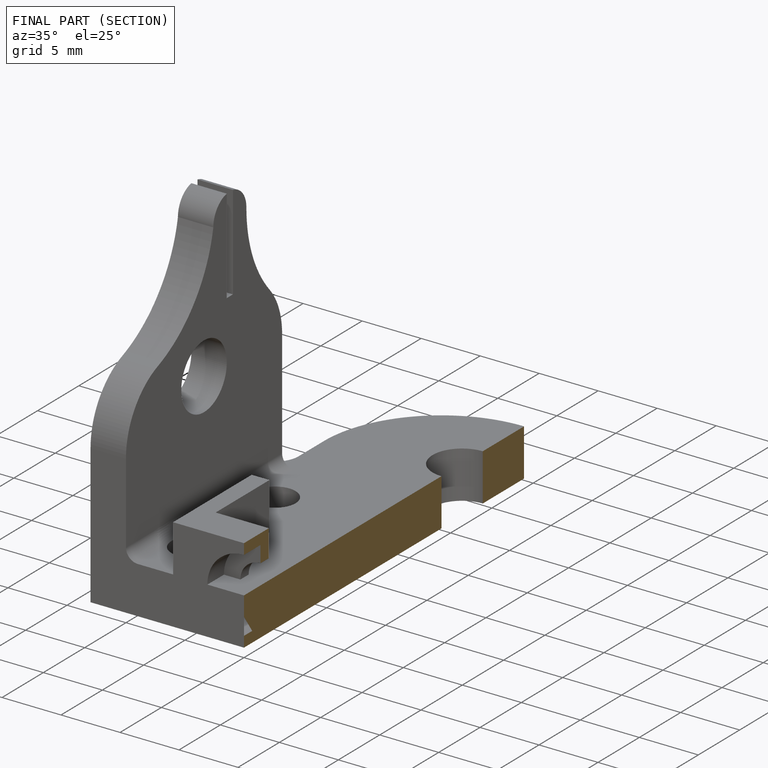
[diagram: finished part — half-section view (interior)]
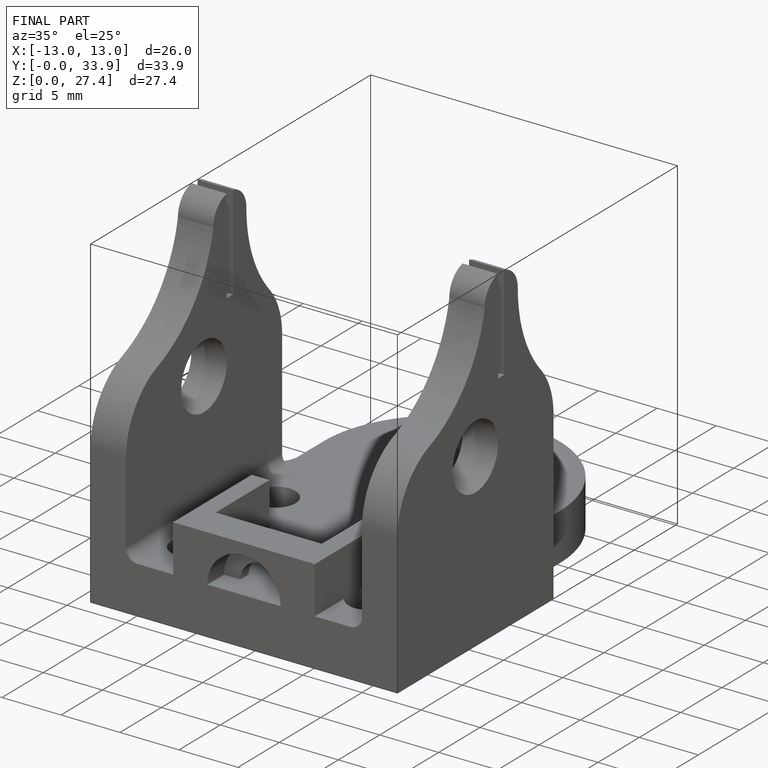
[diagram: finished part — iso view with bounding-box wireframe]
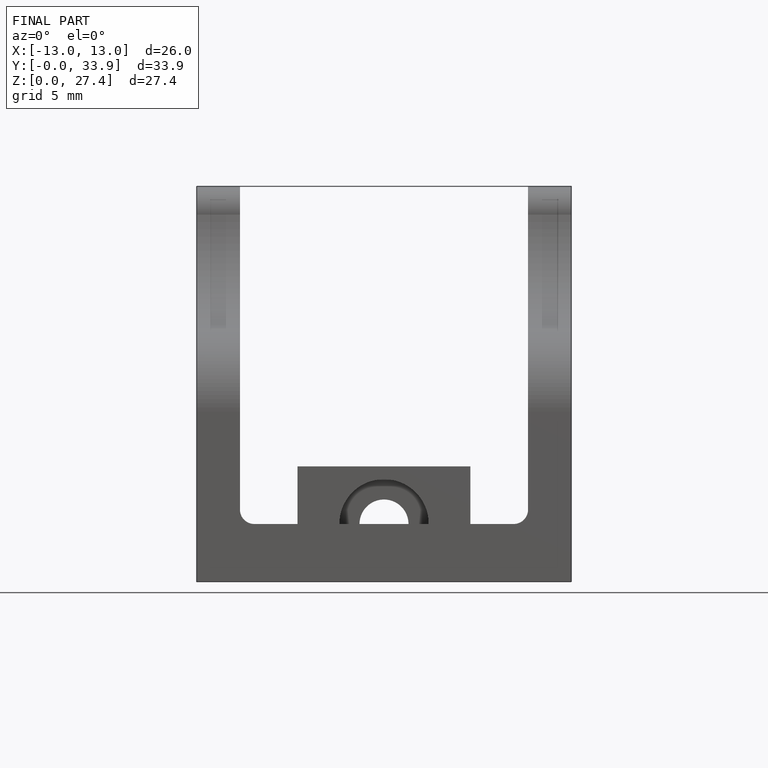
[diagram: finished part — front view with bounding-box wireframe]
